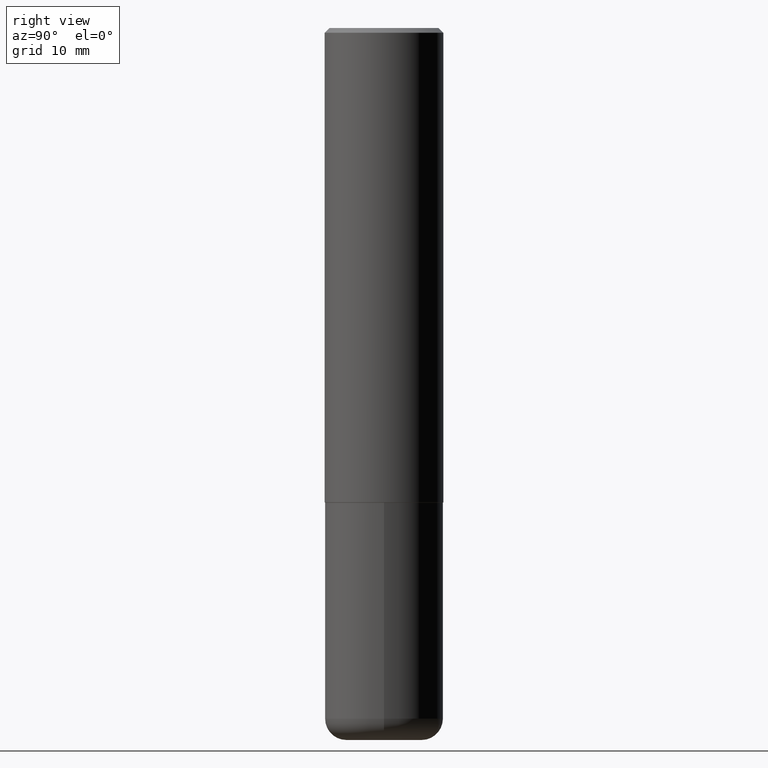
[diagram: clean part render]
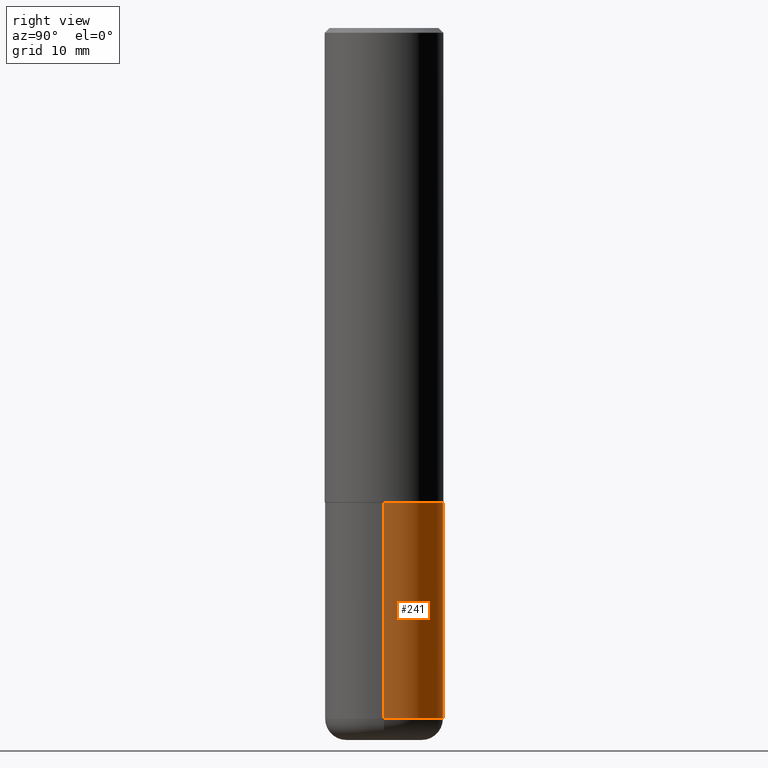
[diagram: same view with one face highlighted and labeled with its STEP entity id]
A machine part, right view. The second image highlights one B-rep face of the part: STEP entity #241.
In plain terms, the highlighted cylindrical surface (partial cylindrical patch) has radius 6.35 mm, axis along (-0, 0, 1).
Its self-contained STEP definition (entity closure, byte-faithful):
#5 = VERTEX_POINT ( 'NONE', #296 ) ;
#14 = CIRCLE ( 'NONE', #246, 0.2500000000000000000 ) ;
#36 = LINE ( 'NONE', #302, #264 ) ;
#43 = VECTOR ( 'NONE', #328, 39.37007874015748143 ) ;
#57 = DIRECTION ( 'NONE',  ( 1.000000000000000000, -6.982962677686266711E-15, 4.876176775795935793E-29 ) ) ;
#58 = VERTEX_POINT ( 'NONE', #156 ) ;
#63 = DIRECTION ( 'NONE',  ( 1.000000000000000000, -6.982962677686266711E-15, 0.000000000000000000 ) ) ;
#79 = EDGE_LOOP ( 'NONE', ( #142, #217, #327, #343 ) ) ;
#84 = FACE_OUTER_BOUND ( 'NONE', #79, .T. ) ;
#89 = DIRECTION ( 'NONE',  ( -2.445468806185136597E-29, 3.491481338843145583E-15, 1.000000000000000000 ) ) ;
#96 = AXIS2_PLACEMENT_3D ( 'NONE', #197, #89, #57 ) ;
#142 = ORIENTED_EDGE ( 'NONE', *, *, #237, .T. ) ;
#147 = DIRECTION ( 'NONE',  ( 1.000000000000000000, -6.982962677686269077E-15, 0.000000000000000000 ) ) ;
#156 = CARTESIAN_POINT ( 'NONE',  ( -0.2500000000000000000, -6.795229847459672846E-15, -2.000000000000000444 ) ) ;
#168 = CARTESIAN_POINT ( 'NONE',  ( -0.2500000000000000000, -8.383853856633304202E-15, -2.910000000000000586 ) ) ;
#191 = LINE ( 'NONE', #346, #43 ) ;
#197 = CARTESIAN_POINT ( 'NONE',  ( 0.000000000000000000, 0.000000000000000000, 0.000000000000000000 ) ) ;
#207 = EDGE_CURVE ( 'NONE', #311, #58, #14, .T. ) ;
#217 = ORIENTED_EDGE ( 'NONE', *, *, #359, .T. ) ;
#228 = CIRCLE ( 'NONE', #286, 0.2500000000000000555 ) ;
#237 = EDGE_CURVE ( 'NONE', #5, #306, #228, .T. ) ;
#241 = ADVANCED_FACE ( 'NONE', ( #84 ), #289, .T. ) ;
#243 = EDGE_CURVE ( 'NONE', #5, #311, #191, .T. ) ;
#246 = AXIS2_PLACEMENT_3D ( 'NONE', #297, #353, #63 ) ;
#264 = VECTOR ( 'NONE', #270, 39.37007874015748143 ) ;
#270 = DIRECTION ( 'NONE',  ( -2.445468806185136877E-29, 3.491481338843145188E-15, 1.000000000000000000 ) ) ;
#286 = AXIS2_PLACEMENT_3D ( 'NONE', #416, #382, #147 ) ;
#289 = CYLINDRICAL_SURFACE ( 'NONE', #96, 0.2500000000000000000 ) ;
#296 = CARTESIAN_POINT ( 'NONE',  ( 0.2500000000000000000, -1.190595136545512292E-14, -2.910000000000000586 ) ) ;
#297 = CARTESIAN_POINT ( 'NONE',  ( 4.890937612370273754E-29, -6.982962677686291954E-15, -2.000000000000000444 ) ) ;
#302 = CARTESIAN_POINT ( 'NONE',  ( -0.2500000000000000000, 1.776356839400250465E-15, -1.229733772563726445E-29 ) ) ;
#306 = VERTEX_POINT ( 'NONE', #168 ) ;
#311 = VERTEX_POINT ( 'NONE', #330 ) ;
#327 = ORIENTED_EDGE ( 'NONE', *, *, #207, .F. ) ;
#328 = DIRECTION ( 'NONE',  ( -2.445468806185136877E-29, 3.491481338843145188E-15, 1.000000000000000000 ) ) ;
#330 = CARTESIAN_POINT ( 'NONE',  ( 0.2500000000000000000, -8.728703347107858632E-15, -2.000000000000000444 ) ) ;
#343 = ORIENTED_EDGE ( 'NONE', *, *, #243, .F. ) ;
#346 = CARTESIAN_POINT ( 'NONE',  ( 0.2500000000000000000, -1.745740669421566678E-15, 1.219044193948983948E-29 ) ) ;
#353 = DIRECTION ( 'NONE',  ( -2.445468806185136597E-29, 3.491481338843145583E-15, 1.000000000000000000 ) ) ;
#359 = EDGE_CURVE ( 'NONE', #306, #58, #36, .T. ) ;
#382 = DIRECTION ( 'NONE',  ( -2.445468806185136597E-29, 3.491481338843145583E-15, 1.000000000000000000 ) ) ;
#416 = CARTESIAN_POINT ( 'NONE',  ( 7.116314225998749245E-29, -1.016021069603355467E-14, -2.910000000000000586 ) ) ;